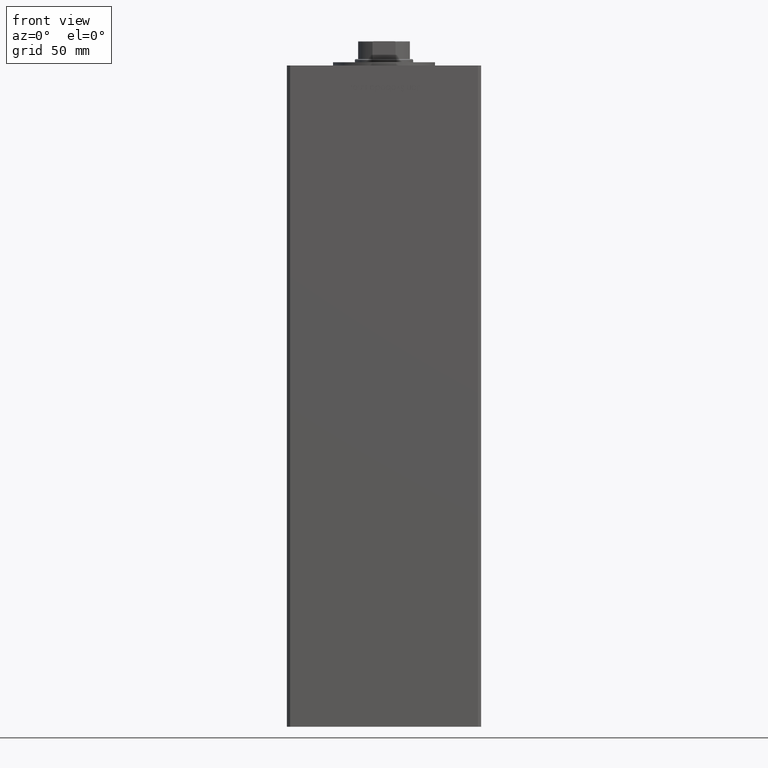
[diagram: clean part render]
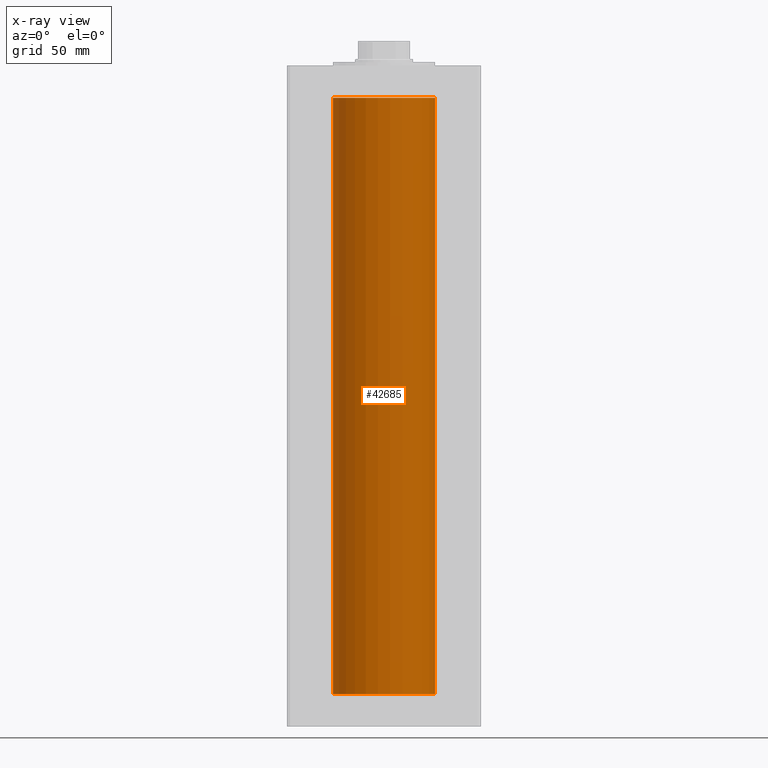
[diagram: x-ray — body ghosted, one internal face saturated and labeled with its STEP entity id]
A machine part, front view, then the same camera in x-ray: the body is ghosted and one INTERNAL B-rep face — a face not visible from any outside direction — is saturated and labeled: STEP entity #42685.
In plain terms, the highlighted cylindrical surface (partial cylindrical patch) has radius 31.5 mm, axis along (-0, -0, -1).
Its self-contained STEP definition (entity closure, byte-faithful):
#139 = FACE_OUTER_BOUND ( 'NONE', #4939, .T. ) ;
#2280 = LINE ( 'NONE', #22437, #36413 ) ;
#3215 = CARTESIAN_POINT ( 'NONE',  ( 31.50000000000000000, 3.857637417314162689E-15, 0.000000000000000000 ) ) ;
#4939 = EDGE_LOOP ( 'NONE', ( #8397, #5036, #22968, #50105 ) ) ;
#5036 = ORIENTED_EDGE ( 'NONE', *, *, #51779, .T. ) ;
#5471 = VERTEX_POINT ( 'NONE', #3215 ) ;
#6252 = DIRECTION ( 'NONE',  ( 1.000000000000000000, 0.000000000000000000, 0.000000000000000000 ) ) ;
#7745 = VERTEX_POINT ( 'NONE', #16752 ) ;
#8397 = ORIENTED_EDGE ( 'NONE', *, *, #49590, .T. ) ;
#8925 = AXIS2_PLACEMENT_3D ( 'NONE', #25656, #21962, #6252 ) ;
#9044 = CYLINDRICAL_SURFACE ( 'NONE', #36560, 31.50000000000000000 ) ;
#10639 = LINE ( 'NONE', #34212, #20806 ) ;
#14163 = DIRECTION ( 'NONE',  ( 1.000000000000000000, 0.000000000000000000, 0.000000000000000000 ) ) ;
#15847 = AXIS2_PLACEMENT_3D ( 'NONE', #30361, #50029, #14163 ) ;
#16625 = CARTESIAN_POINT ( 'NONE',  ( -31.50000000000000000, 0.000000000000000000, 368.5000000000000000 ) ) ;
#16752 = CARTESIAN_POINT ( 'NONE',  ( 31.50000000000000000, 3.857637417314162689E-15, 368.5000000000000000 ) ) ;
#18821 = CARTESIAN_POINT ( 'NONE',  ( -31.50000000000000000, 0.000000000000000000, 0.000000000000000000 ) ) ;
#19168 = CIRCLE ( 'NONE', #15847, 31.50000000000000000 ) ;
#20806 = VECTOR ( 'NONE', #26085, 1000.000000000000000 ) ;
#21962 = DIRECTION ( 'NONE',  ( -0.000000000000000000, 0.000000000000000000, 1.000000000000000000 ) ) ;
#22437 = CARTESIAN_POINT ( 'NONE',  ( -31.50000000000000000, 0.000000000000000000, 368.5000000000000000 ) ) ;
#22968 = ORIENTED_EDGE ( 'NONE', *, *, #41237, .F. ) ;
#24761 = DIRECTION ( 'NONE',  ( -0.000000000000000000, -0.000000000000000000, -1.000000000000000000 ) ) ;
#25656 = CARTESIAN_POINT ( 'NONE',  ( 0.000000000000000000, 0.000000000000000000, 0.000000000000000000 ) ) ;
#26085 = DIRECTION ( 'NONE',  ( -0.000000000000000000, -0.000000000000000000, -1.000000000000000000 ) ) ;
#30361 = CARTESIAN_POINT ( 'NONE',  ( 0.000000000000000000, 0.000000000000000000, 368.5000000000000000 ) ) ;
#33329 = EDGE_CURVE ( 'NONE', #50287, #35763, #2280, .T. ) ;
#34212 = CARTESIAN_POINT ( 'NONE',  ( 31.50000000000000000, 3.857637417314162689E-15, 368.5000000000000000 ) ) ;
#35763 = VERTEX_POINT ( 'NONE', #18821 ) ;
#36413 = VECTOR ( 'NONE', #46785, 1000.000000000000000 ) ;
#36560 = AXIS2_PLACEMENT_3D ( 'NONE', #40462, #24761, #44906 ) ;
#40462 = CARTESIAN_POINT ( 'NONE',  ( 0.000000000000000000, 0.000000000000000000, 368.5000000000000000 ) ) ;
#41237 = EDGE_CURVE ( 'NONE', #35763, #5471, #42370, .T. ) ;
#42370 = CIRCLE ( 'NONE', #8925, 31.50000000000000000 ) ;
#42685 = ADVANCED_FACE ( 'NONE', ( #139 ), #9044, .F. ) ;
#44906 = DIRECTION ( 'NONE',  ( -1.000000000000000000, 0.000000000000000000, 0.000000000000000000 ) ) ;
#46785 = DIRECTION ( 'NONE',  ( -0.000000000000000000, -0.000000000000000000, -1.000000000000000000 ) ) ;
#49590 = EDGE_CURVE ( 'NONE', #50287, #7745, #19168, .T. ) ;
#50029 = DIRECTION ( 'NONE',  ( -0.000000000000000000, 0.000000000000000000, 1.000000000000000000 ) ) ;
#50105 = ORIENTED_EDGE ( 'NONE', *, *, #33329, .F. ) ;
#50287 = VERTEX_POINT ( 'NONE', #16625 ) ;
#51779 = EDGE_CURVE ( 'NONE', #7745, #5471, #10639, .T. ) ;